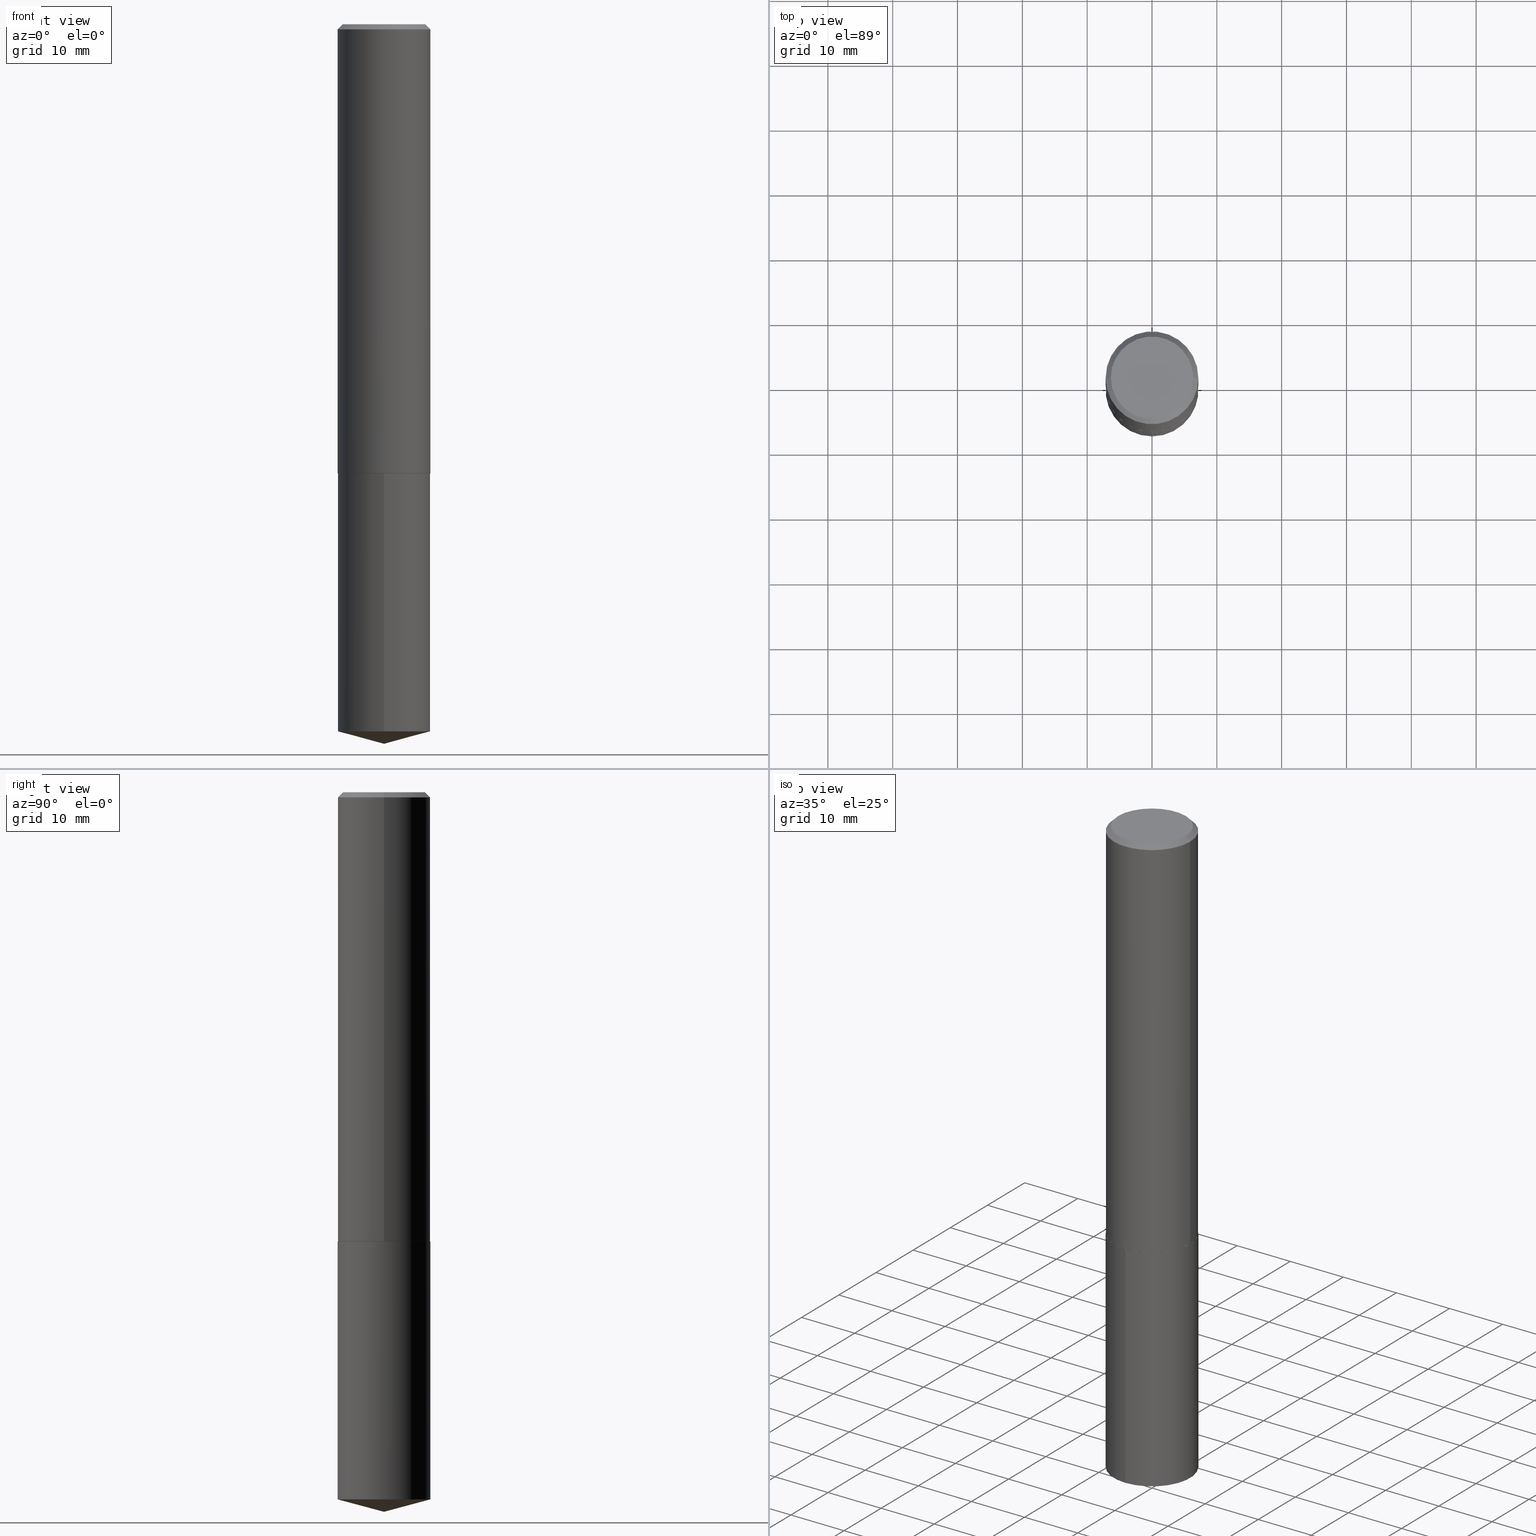
[diagram: canonical four-view strip — front | top / right | iso, engineering-drawing reading convention]
A machine part, canonical four-view strip (front | top / right | iso — engineering-drawing reading convention). The complete STEP part file that produces these views, byte-faithful:
ISO-10303-21;
HEADER;
FILE_DESCRIPTION (( 'STEP AP203' ),
    '1' );
FILE_NAME ('63039.STEP',
    '2024-04-23T08:23:49',
    ( '' ),
    ( '' ),
    'SwSTEP 2.0',
    'SolidWorks 2023',
    '' );
FILE_SCHEMA (( 'CONFIG_CONTROL_DESIGN' ));
ENDSEC;

DATA;
#1 = ORIENTED_EDGE ( 'NONE', *, *, #39, .F. ) ;
#2 = CARTESIAN_POINT ( 'NONE',  ( 1.050222486221045995E-28, -1.499514380840898218E-14, -4.294672302330639901 ) ) ;
#3 = DIRECTION ( 'NONE',  ( 6.982962677686265922E-15, 1.000000000000000000, -3.491721149235287367E-15 ) ) ;
#4 = EDGE_CURVE ( 'NONE', #121, #85, #272, .T. ) ;
#5 = APPROVAL_PERSON_ORGANIZATION ( #176, #36, #379 ) ;
#6 = ORIENTED_EDGE ( 'NONE', *, *, #308, .F. ) ;
#7 = DIRECTION ( 'NONE',  ( -2.445301347483331542E-29, 3.491721149235287761E-15, 1.000000000000000000 ) ) ;
#8 = CARTESIAN_POINT ( 'NONE',  ( -0.2502499999999999725, 1.802040806010411548E-15, 7.225416114845277753E-19 ) ) ;
#9 = CARTESIAN_POINT ( 'NONE',  ( 1.068621141863690823E-28, -1.525917059427313222E-14, -4.370099999999999874 ) ) ;
#10 = CIRCLE ( 'NONE', #153, 0.2815000000000003055 ) ;
#11 = ADVANCED_FACE ( 'NONE', ( #91 ), #95, .T. ) ;
#12 = DIRECTION ( 'NONE',  ( 2.438088387897960049E-29, -3.491481338843145188E-15, -1.000000000000000000 ) ) ;
#13 = PERSON_AND_ORGANIZATION_ROLE ( 'classification_officer' ) ;
#14 = EDGE_CURVE ( 'NONE', #322, #348, #260, .T. ) ;
#15 = VERTEX_POINT ( 'NONE', #265 ) ;
#16 = DIRECTION ( 'NONE',  ( -2.445468806185136597E-29, 3.491481338843145583E-15, 1.000000000000000000 ) ) ;
#17 = EDGE_LOOP ( 'NONE', ( #58, #57, #383, #263 ) ) ;
#18 = FACE_OUTER_BOUND ( 'NONE', #88, .T. ) ;
#19 = CIRCLE ( 'NONE', #100, 0.2814999999999999725 ) ;
#20 = ORIENTED_EDGE ( 'NONE', *, *, #261, .F. ) ;
#21 = DIRECTION ( 'NONE',  ( -2.445468806185136597E-29, 3.491481338843145583E-15, 1.000000000000000000 ) ) ;
#22 = PRODUCT_RELATED_PRODUCT_CATEGORY ( 'detail', '', ( #92 ) ) ;
#23 = CARTESIAN_POINT ( 'NONE',  ( 6.670994356392434802E-29, -9.524411944230218613E-15, -2.727899999999999991 ) ) ;
#24 = ORIENTED_EDGE ( 'NONE', *, *, #384, .T. ) ;
#25 = PERSON_AND_ORGANIZATION_ROLE ( 'design_owner' ) ;
#26 = ORIENTED_EDGE ( 'NONE', *, *, #251, .F. ) ;
#27 = ADVANCED_FACE ( 'NONE', ( #120 ), #232, .F. ) ;
#28 = ORIENTED_EDGE ( 'NONE', *, *, #179, .T. ) ;
#29 = EDGE_LOOP ( 'NONE', ( #6, #198, #26 ) ) ;
#30 = VERTEX_POINT ( 'NONE', #267 ) ;
#31 = DIRECTION ( 'NONE',  ( 1.000000000000000000, -6.982962677686265922E-15, 4.876176775795935793E-29 ) ) ;
#32 = ORIENTED_EDGE ( 'NONE', *, *, #181, .T. ) ;
#33 = DIRECTION ( 'NONE',  ( -2.445468806185136597E-29, 3.491481338843145583E-15, 1.000000000000000000 ) ) ;
#34 = CIRCLE ( 'NONE', #62, 0.2502499999999999725 ) ;
#35 = DIRECTION ( 'NONE',  ( -2.445468806185136597E-29, 3.491481338843145583E-15, 1.000000000000000000 ) ) ;
#36 = APPROVAL ( #173, 'UNSPECIFIED' ) ;
#37 = DIRECTION ( 'NONE',  ( -2.445301347483331542E-29, 3.491721149235287761E-15, 1.000000000000000000 ) ) ;
#38 = AXIS2_PLACEMENT_3D ( 'NONE', #84, #195, #317 ) ;
#39 = EDGE_CURVE ( 'NONE', #146, #83, #342, .T. ) ;
#40 = CIRCLE ( 'NONE', #51, 0.2814999999999999725 ) ;
#41 = LOCAL_TIME ( 4, 23, 49.00000000000000000, #72 ) ;
#42 = DIRECTION ( 'NONE',  ( -2.445468806185136597E-29, 3.491481338843145583E-15, 1.000000000000000000 ) ) ;
#43 = EDGE_CURVE ( 'NONE', #121, #266, #167, .T. ) ;
#44 = DIRECTION ( 'NONE',  ( -2.445468806185136597E-29, 3.491481338843145583E-15, 1.000000000000000000 ) ) ;
#45 = AXIS2_PLACEMENT_3D ( 'NONE', #331, #369, #301 ) ;
#46 = CC_DESIGN_DATE_AND_TIME_ASSIGNMENT ( #80, #141, ( #76 ) ) ;
#47 = CARTESIAN_POINT ( 'NONE',  ( 2.000177801164748486E-15, 0.2814999999999904801, -2.728400000000001491 ) ) ;
#48 = CARTESIAN_POINT ( 'NONE',  ( -1.965703993768616963E-15, -0.2815000000000095204, -2.728399999999999270 ) ) ;
#49 = COORDINATED_UNIVERSAL_TIME_OFFSET ( 5, 0, .BEHIND. ) ;
#50 = CC_DESIGN_PERSON_AND_ORGANIZATION_ASSIGNMENT ( #56, #25, ( #92 ) ) ;
#51 = AXIS2_PLACEMENT_3D ( 'NONE', #130, #154, #366 ) ;
#52 = ORIENTED_EDGE ( 'NONE', *, *, #384, .F. ) ;
#53 = CC_DESIGN_APPROVAL ( #365, ( #76 ) ) ;
#54 = DATE_AND_TIME ( #200, #356 ) ;
#55 = CARTESIAN_POINT ( 'NONE',  ( 7.642090019328603538E-31, -1.091087918388490390E-16, -0.03125000000000021511 ) ) ;
#56 = PERSON_AND_ORGANIZATION ( #299, #169 ) ;
#57 = ORIENTED_EDGE ( 'NONE', *, *, #181, .F. ) ;
#58 = ORIENTED_EDGE ( 'NONE', *, *, #275, .F. ) ;
#59 = DIRECTION ( 'NONE',  ( -2.445468806185136597E-29, 3.491481338843145583E-15, 1.000000000000000000 ) ) ;
#60 = ORIENTED_EDGE ( 'NONE', *, *, #251, .T. ) ;
#61 = AXIS2_PLACEMENT_3D ( 'NONE', #122, #161, #104 ) ;
#62 = AXIS2_PLACEMENT_3D ( 'NONE', #94, #35, #236 ) ;
#63 = APPROVAL_PERSON_ORGANIZATION ( #253, #365, #196 ) ;
#64 = AXIS2_PLACEMENT_3D ( 'NONE', #165, #42, #105 ) ;
#65 = CARTESIAN_POINT ( 'NONE',  ( 0.2814999999999999725, -2.040338978211535305E-15, -0.03125000000000021511 ) ) ;
#66 = DIRECTION ( 'NONE',  ( 1.000000000000000000, -6.982962677686264344E-15, 0.000000000000000000 ) ) ;
#67 = CARTESIAN_POINT ( 'NONE',  ( 6.670994356392434802E-29, -9.524411944230218613E-15, -2.727899999999999991 ) ) ;
#68 = VECTOR ( 'NONE', #209, 39.37007874015748143 ) ;
#69 = CARTESIAN_POINT ( 'NONE',  ( 6.672217090795527604E-29, -9.526157684899640905E-15, -2.728400000000000158 ) ) ;
#70 = COORDINATED_UNIVERSAL_TIME_OFFSET ( 5, 0, .BEHIND. ) ;
#71 = DIRECTION ( 'NONE',  ( -6.982962677686265922E-15, -1.000000000000000000, 3.881844395970533976E-15 ) ) ;
#72 = COORDINATED_UNIVERSAL_TIME_OFFSET ( 5, 0, .BEHIND. ) ;
#73 = MANIFOLD_SOLID_BREP ( 'Body-Move/Copy2[1]', #387 ) ;
#74 = DIRECTION ( 'NONE',  ( -2.445301347483331542E-29, 3.491721149235287761E-15, 1.000000000000000000 ) ) ;
#75 = DIRECTION ( 'NONE',  ( 1.000000000000000000, -6.982962677686264344E-15, 0.000000000000000000 ) ) ;
#76 = SECURITY_CLASSIFICATION ( '', '', #277 ) ;
#77 = ADVANCED_FACE ( 'NONE', ( #18 ), #340, .T. ) ;
#78 = CARTESIAN_POINT ( 'NONE',  ( -0.2815000000000003055, -7.524234143065534418E-15, -2.727899999999999991 ) ) ;
#79 = COORDINATED_UNIVERSAL_TIME_OFFSET ( 5, 0, .BEHIND. ) ;
#80 = DATE_AND_TIME ( #347, #41 ) ;
#81 = AXIS2_PLACEMENT_3D ( 'NONE', #203, #59, #175 ) ;
#82 = APPLICATION_CONTEXT ( 'configuration controlled 3d designs of mechanical parts and assemblies' ) ;
#83 = VERTEX_POINT ( 'NONE', #320 ) ;
#84 = CARTESIAN_POINT ( 'NONE',  ( 0.000000000000000000, 0.000000000000000000, 0.000000000000000000 ) ) ;
#85 = VERTEX_POINT ( 'NONE', #78 ) ;
#86 = ORIENTED_EDGE ( 'NONE', *, *, #370, .T. ) ;
#87 = PRODUCT_DEFINITION_SHAPE ( 'NONE', 'NONE',  #344 ) ;
#88 = EDGE_LOOP ( 'NONE', ( #114, #170, #389, #220 ) ) ;
#89 = CIRCLE ( 'NONE', #81, 0.2814999999999999725 ) ;
#90 = CC_DESIGN_APPROVAL ( #212, ( #373 ) ) ;
#91 = FACE_OUTER_BOUND ( 'NONE', #338, .T. ) ;
#92 = PRODUCT ( '63039', '63039', '', ( #168 ) ) ;
#93 = APPROVAL_ROLE ( '' ) ;
#94 = CARTESIAN_POINT ( 'NONE',  ( -1.766952972086504911E-47, 2.522740553079217515E-33, 7.225416114969393346E-19 ) ) ;
#95 = CYLINDRICAL_SURFACE ( 'NONE', #269, 0.2815000000000001390 ) ;
#96 = DATE_AND_TIME ( #127, #229 ) ;
#97 = DIRECTION ( 'NONE',  ( -2.445468806185136597E-29, 3.491481338843145583E-15, 1.000000000000000000 ) ) ;
#98 = AXIS2_PLACEMENT_3D ( 'NONE', #55, #388, #314 ) ;
#99 = MANIFOLD_SOLID_BREP ( 'Body-Move/Copy2[2]', #138 ) ;
#100 = AXIS2_PLACEMENT_3D ( 'NONE', #333, #374, #367 ) ;
#101 = DIMENSIONAL_EXPONENTS ( 1.000000000000000000, 0.000000000000000000, 0.000000000000000000, 0.000000000000000000, 0.000000000000000000, 0.000000000000000000, 0.000000000000000000 ) ;
#102 = EDGE_LOOP ( 'NONE', ( #353, #227, #28, #240 ) ) ;
#103 = CARTESIAN_POINT ( 'NONE',  ( -0.2814999999999999725, 1.856595201929834915E-15, -0.03125000000000021511 ) ) ;
#104 = DIRECTION ( 'NONE',  ( 1.000000000000000000, -6.982962677686267499E-15, 0.000000000000000000 ) ) ;
#105 = DIRECTION ( 'NONE',  ( 1.000000000000000000, -6.982962677686264344E-15, 0.000000000000000000 ) ) ;
#106 = ORIENTED_EDGE ( 'NONE', *, *, #187, .F. ) ;
#107 = CONICAL_SURFACE ( 'NONE', #313, 146.9311341562574000, 1.308996938995751202 ) ;
#108 = APPLICATION_CONTEXT ( 'configuration controlled 3d designs of mechanical parts and assemblies' ) ;
#109 = CC_DESIGN_PERSON_AND_ORGANIZATION_ASSIGNMENT ( #135, #377, ( #344 ) ) ;
#110 = VECTOR ( 'NONE', #345, 39.37007874015748143 ) ;
#111 = COORDINATED_UNIVERSAL_TIME_OFFSET ( 5, 0, .BEHIND. ) ;
#112 = DATE_AND_TIME ( #381, #256 ) ;
#113 = APPROVAL_DATE_TIME ( #385, #36 ) ;
#114 = ORIENTED_EDGE ( 'NONE', *, *, #136, .F. ) ;
#115 = PERSON_AND_ORGANIZATION ( #299, #169 ) ;
#116 = AXIS2_PLACEMENT_3D ( 'NONE', #2, #7, #358 ) ;
#117 = CONICAL_SURFACE ( 'NONE', #343, 0.2815000000000003055, 0.7853981633973459164 ) ;
#118 = LINE ( 'NONE', #147, #213 ) ;
#119 = CC_DESIGN_PERSON_AND_ORGANIZATION_ASSIGNMENT ( #336, #304, ( #373 ) ) ;
#120 = FACE_OUTER_BOUND ( 'NONE', #286, .T. ) ;
#121 = VERTEX_POINT ( 'NONE', #171 ) ;
#122 = CARTESIAN_POINT ( 'NONE',  ( 6.672217090795527604E-29, -9.526157684899640905E-15, -2.728400000000000158 ) ) ;
#123 = FACE_OUTER_BOUND ( 'NONE', #323, .T. ) ;
#124 = AXIS2_PLACEMENT_3D ( 'NONE', #204, #297, #390 ) ;
#125 = DIRECTION ( 'NONE',  ( -2.445301347483331542E-29, 3.491721149235287367E-15, 1.000000000000000000 ) ) ;
#126 = EDGE_LOOP ( 'NONE', ( #32, #143 ) ) ;
#127 = CALENDAR_DATE ( 2024, 23, 4 ) ;
#128 = CARTESIAN_POINT ( 'NONE',  ( 0.2815000000000001390, -1.965703993768684805E-15, 1.372643762386556638E-29 ) ) ;
#129 = ADVANCED_FACE ( 'NONE', ( #142 ), #199, .T. ) ;
#130 = CARTESIAN_POINT ( 'NONE',  ( 1.050222486221045995E-28, -1.499514380840898218E-14, -4.294672302330639901 ) ) ;
#131 = DIRECTION ( 'NONE',  ( -2.445301347483331542E-29, 3.491721149235287761E-15, 1.000000000000000000 ) ) ;
#132 = LINE ( 'NONE', #357, #68 ) ;
#133 = LINE ( 'NONE', #285, #110 ) ;
#134 = LINE ( 'NONE', #103, #177 ) ;
#135 = PERSON_AND_ORGANIZATION ( #299, #169 ) ;
#136 = EDGE_CURVE ( 'NONE', #146, #15, #258, .T. ) ;
#137 = VERTEX_POINT ( 'NONE', #48 ) ;
#138 = CLOSED_SHELL ( 'NONE', ( #129, #11, #309, #27, #321, #184, #247, #205 ) ) ;
#139 = VECTOR ( 'NONE', #239, 39.37007874015748143 ) ;
#140 = CC_DESIGN_APPROVAL ( #36, ( #344 ) ) ;
#141 = DATE_TIME_ROLE ( 'classification_date' ) ;
#142 = FACE_OUTER_BOUND ( 'NONE', #102, .T. ) ;
#143 = ORIENTED_EDGE ( 'NONE', *, *, #234, .T. ) ;
#144 = AXIS2_PLACEMENT_3D ( 'NONE', #244, #21, #283 ) ;
#145 = CARTESIAN_POINT ( 'NONE',  ( 0.2502499999999999725, -1.878589301076930179E-15, 7.225416115096182129E-19 ) ) ;
#146 = VERTEX_POINT ( 'NONE', #376 ) ;
#147 = CARTESIAN_POINT ( 'NONE',  ( -0.2815000000000001390, 2.000177801164683011E-15, -1.384680227906756714E-29 ) ) ;
#148 = ORIENTED_EDGE ( 'NONE', *, *, #187, .T. ) ;
#149 = ADVANCED_FACE ( 'NONE', ( #324 ), #107, .T. ) ;
#150 = CARTESIAN_POINT ( 'NONE',  ( 6.672217090795527604E-29, -9.526157684899640905E-15, -2.728400000000000158 ) ) ;
#151 = DIRECTION ( 'NONE',  ( -2.445468806185136597E-29, 3.491481338843145583E-15, 1.000000000000000000 ) ) ;
#152 = DIRECTION ( 'NONE',  ( 1.000000000000000000, -6.982962677686264344E-15, 0.000000000000000000 ) ) ;
#153 = AXIS2_PLACEMENT_3D ( 'NONE', #67, #97, #152 ) ;
#154 = DIRECTION ( 'NONE',  ( -2.445301347483331542E-29, 3.491721149235287761E-15, 1.000000000000000000 ) ) ;
#155 = DIRECTION ( 'NONE',  ( -2.445468806185136597E-29, 3.491481338843145583E-15, 1.000000000000000000 ) ) ;
#156 = DIRECTION ( 'NONE',  ( -6.982962677686265133E-15, -1.000000000000000000, 3.510303681827583241E-15 ) ) ;
#157 = ORIENTED_EDGE ( 'NONE', *, *, #4, .T. ) ;
#158 = DIRECTION ( 'NONE',  ( -6.982962677686265922E-15, -1.000000000000000000, 3.881844395970533976E-15 ) ) ;
#159 =( CONVERSION_BASED_UNIT ( 'INCH', #375 ) LENGTH_UNIT ( ) NAMED_UNIT ( #101 ) );
#160 = PERSON_AND_ORGANIZATION_ROLE ( 'design_supplier' ) ;
#161 = DIRECTION ( 'NONE',  ( -2.445468806185136597E-29, 3.491481338843145583E-15, 1.000000000000000000 ) ) ;
#162 =( NAMED_UNIT ( * ) SI_UNIT ( $, .STERADIAN. ) SOLID_ANGLE_UNIT ( ) );
#163 = AXIS2_PLACEMENT_3D ( 'NONE', #188, #252, #71 ) ;
#164 = CYLINDRICAL_SURFACE ( 'NONE', #193, 0.2814999999999999725 ) ;
#165 = CARTESIAN_POINT ( 'NONE',  ( 6.670994356392434802E-29, -9.524411944230218613E-15, -2.727899999999999991 ) ) ;
#166 = EDGE_CURVE ( 'NONE', #85, #322, #118, .T. ) ;
#167 = CIRCLE ( 'NONE', #61, 0.2810000000000002496 ) ;
#168 = MECHANICAL_CONTEXT ( 'NONE', #82, 'mechanical' ) ;
#169 = ORGANIZATION ( 'UNSPECIFIED', 'UNSPECIFIED', '' ) ;
#170 = ORIENTED_EDGE ( 'NONE', *, *, #39, .T. ) ;
#171 = CARTESIAN_POINT ( 'NONE',  ( -0.2810000000000002496, -7.526883370239646408E-15, -2.728400000000000158 ) ) ;
#172 = VERTEX_POINT ( 'NONE', #145 ) ;
#173 = APPROVAL_STATUS ( 'not_yet_approved' ) ;
#174 = ORIENTED_EDGE ( 'NONE', *, *, #308, .T. ) ;
#175 = DIRECTION ( 'NONE',  ( 1.000000000000000000, -6.982962677686267499E-15, 0.000000000000000000 ) ) ;
#176 = PERSON_AND_ORGANIZATION ( #299, #169 ) ;
#177 = VECTOR ( 'NONE', #280, 39.37007874015748143 ) ;
#178 = DIRECTION ( 'NONE',  ( -6.982962677686265133E-15, -1.000000000000000000, 3.510303681827583241E-15 ) ) ;
#179 = EDGE_CURVE ( 'NONE', #348, #322, #89, .T. ) ;
#180 = ORIENTED_EDGE ( 'NONE', *, *, #136, .T. ) ;
#181 = EDGE_CURVE ( 'NONE', #231, #172, #319, .T. ) ;
#182 = CYLINDRICAL_SURFACE ( 'NONE', #302, 0.2815000000000001390 ) ;
#183 = PLANE ( 'NONE',  #306 ) ;
#184 = ADVANCED_FACE ( 'NONE', ( #233 ), #182, .T. ) ;
#185 = CONICAL_SURFACE ( 'NONE', #45, 0.2814999999999999725, 0.7853981633974450594 ) ;
#186 = DIRECTION ( 'NONE',  ( -1.000000000000000000, 6.982962677686265922E-15, -4.876176775795935793E-29 ) ) ;
#187 = EDGE_CURVE ( 'NONE', #30, #85, #10, .T. ) ;
#188 = CARTESIAN_POINT ( 'NONE',  ( 6.672217090795527604E-29, -9.526157684899640905E-15, -2.728400000000000158 ) ) ;
#189 = EDGE_CURVE ( 'NONE', #197, #146, #132, .T. ) ;
#190 =( NAMED_UNIT ( * ) PLANE_ANGLE_UNIT ( ) SI_UNIT ( $, .RADIAN. ) );
#191 =( LENGTH_UNIT ( ) NAMED_UNIT ( * ) SI_UNIT ( $, .METRE. ) );
#192 = FACE_OUTER_BOUND ( 'NONE', #386, .T. ) ;
#193 = AXIS2_PLACEMENT_3D ( 'NONE', #69, #74, #246 ) ;
#194 = DIRECTION ( 'NONE',  ( 0.7071067811864750752, -2.468850131081498176E-15, 0.7071067811866199593 ) ) ;
#195 = DIRECTION ( 'NONE',  ( 0.000000000000000000, 0.000000000000000000, 1.000000000000000000 ) ) ;
#196 = APPROVAL_ROLE ( '' ) ;
#197 = VERTEX_POINT ( 'NONE', #9 ) ;
#198 = ORIENTED_EDGE ( 'NONE', *, *, #189, .T. ) ;
#199 = CONICAL_SURFACE ( 'NONE', #98, 0.2814999999999999725, 0.7853981633974450594 ) ;
#200 = CALENDAR_DATE ( 2024, 23, 4 ) ;
#201 = CONICAL_SURFACE ( 'NONE', #243, 146.9311341562574000, 1.308996938995751202 ) ;
#202 = UNCERTAINTY_MEASURE_WITH_UNIT (LENGTH_MEASURE( 1.000000000000000082E-05 ), #159, 'distance_accuracy_value', 'NONE');
#203 = CARTESIAN_POINT ( 'NONE',  ( 7.642090019328603538E-31, -1.091087918388490390E-16, -0.03125000000000021511 ) ) ;
#204 = CARTESIAN_POINT ( 'NONE',  ( -1.766952972086504911E-47, 2.522740553079217515E-33, 7.225416114969393346E-19 ) ) ;
#205 = ADVANCED_FACE ( 'NONE', ( #270 ), #242, .F. ) ;
#206 = ORIENTED_EDGE ( 'NONE', *, *, #179, .F. ) ;
#207 = CARTESIAN_POINT ( 'NONE',  ( 6.672217090795527604E-29, -9.526157684899640905E-15, -2.728400000000000158 ) ) ;
#208 =( GEOMETRIC_REPRESENTATION_CONTEXT ( 3 ) GLOBAL_UNCERTAINTY_ASSIGNED_CONTEXT ( ( #202 ) ) GLOBAL_UNIT_ASSIGNED_CONTEXT ( ( #159, #190, #162 ) ) REPRESENTATION_CONTEXT ( 'NONE', 'WORKASPACE' ) );
#209 = DIRECTION ( 'NONE',  ( 6.863315791527699781E-15, 0.9659258262890701996, 0.2588190451025134675 ) ) ;
#210 = DIRECTION ( 'NONE',  ( 0.7071067811865452413, -7.319954787623248157E-15, -0.7071067811865497932 ) ) ;
#211 = CARTESIAN_POINT ( 'NONE',  ( 7.642090019328603538E-31, -1.091087918388490390E-16, -0.03125000000000021511 ) ) ;
#212 = APPROVAL ( #305, 'UNSPECIFIED' ) ;
#213 = VECTOR ( 'NONE', #230, 39.37007874015748143 ) ;
#214 = CARTESIAN_POINT ( 'NONE',  ( 0.2810000000000002496, -1.148837019732948349E-14, -2.728400000000000158 ) ) ;
#215 = FACE_OUTER_BOUND ( 'NONE', #378, .T. ) ;
#216 = CARTESIAN_POINT ( 'NONE',  ( 0.000000000000000000, 0.000000000000000000, 0.000000000000000000 ) ) ;
#217 = EDGE_LOOP ( 'NONE', ( #60, #180, #52, #346 ) ) ;
#218 = CARTESIAN_POINT ( 'NONE',  ( -0.2814999999999999725, -2.816582566869850057E-15, -0.03125000000000021511 ) ) ;
#219 = APPLICATION_PROTOCOL_DEFINITION ( 'international standard', 'config_control_design', 1994, #82 ) ;
#220 = ORIENTED_EDGE ( 'NONE', *, *, #279, .F. ) ;
#221 = ADVANCED_FACE ( 'NONE', ( #268 ), #201, .T. ) ;
#222 = FACE_OUTER_BOUND ( 'NONE', #217, .T. ) ;
#223 = CC_DESIGN_PERSON_AND_ORGANIZATION_ASSIGNMENT ( #241, #160, ( #373 ) ) ;
#224 = AXIS2_PLACEMENT_3D ( 'NONE', #276, #12, #186 ) ;
#225 = ORIENTED_EDGE ( 'NONE', *, *, #189, .F. ) ;
#226 = CALENDAR_DATE ( 2024, 23, 4 ) ;
#227 = ORIENTED_EDGE ( 'NONE', *, *, #275, .T. ) ;
#228 = CIRCLE ( 'NONE', #287, 0.2815000000000003055 ) ;
#229 = LOCAL_TIME ( 4, 23, 49.00000000000000000, #70 ) ;
#230 = DIRECTION ( 'NONE',  ( -2.445468806185136877E-29, 3.491481338843145188E-15, 1.000000000000000000 ) ) ;
#231 = VERTEX_POINT ( 'NONE', #8 ) ;
#232 = PLANE ( 'NONE',  #354 ) ;
#233 = FACE_OUTER_BOUND ( 'NONE', #310, .T. ) ;
#234 = EDGE_CURVE ( 'NONE', #172, #231, #34, .T. ) ;
#235 = CARTESIAN_POINT ( 'NONE',  ( -1.965703993768616963E-15, -0.2815000000000095204, -2.728399999999999270 ) ) ;
#236 = DIRECTION ( 'NONE',  ( 1.000000000000000000, -6.982962677686266711E-15, 4.876199892921953804E-29 ) ) ;
#237 = ADVANCED_FACE ( 'NONE', ( #123 ), #183, .F. ) ;
#238 = ORIENTED_EDGE ( 'NONE', *, *, #261, .T. ) ;
#239 = DIRECTION ( 'NONE',  ( -2.445468806185136877E-29, 3.491481338843145188E-15, 1.000000000000000000 ) ) ;
#240 = ORIENTED_EDGE ( 'NONE', *, *, #361, .F. ) ;
#241 = PERSON_AND_ORGANIZATION ( #299, #169 ) ;
#242 = PLANE ( 'NONE',  #224 ) ;
#243 = AXIS2_PLACEMENT_3D ( 'NONE', #300, #37, #156 ) ;
#244 = CARTESIAN_POINT ( 'NONE',  ( 6.672217090795527604E-29, -9.526157684899640905E-15, -2.728400000000000158 ) ) ;
#245 = FACE_OUTER_BOUND ( 'NONE', #17, .T. ) ;
#246 = DIRECTION ( 'NONE',  ( -6.982962677686265922E-15, -1.000000000000000000, 3.881844395970533976E-15 ) ) ;
#247 = ADVANCED_FACE ( 'NONE', ( #245 ), #185, .T. ) ;
#248 = VECTOR ( 'NONE', #210, 39.37007874015748143 ) ;
#249 = EDGE_CURVE ( 'NONE', #83, #137, #273, .T. ) ;
#250 = CARTESIAN_POINT ( 'NONE',  ( 0.2815000000000003055, -1.149011593799890421E-14, -2.727899999999999991 ) ) ;
#251 = EDGE_CURVE ( 'NONE', #83, #146, #40, .T. ) ;
#252 = DIRECTION ( 'NONE',  ( -2.445301347483331542E-29, 3.491721149235287761E-15, 1.000000000000000000 ) ) ;
#253 = PERSON_AND_ORGANIZATION ( #299, #169 ) ;
#254 = AXIS2_PLACEMENT_3D ( 'NONE', #211, #151, #334 ) ;
#255 = CC_DESIGN_SECURITY_CLASSIFICATION ( #76, ( #373 ) ) ;
#256 = LOCAL_TIME ( 4, 23, 49.00000000000000000, #49 ) ;
#257 = APPROVAL_STATUS ( 'not_yet_approved' ) ;
#258 = LINE ( 'NONE', #47, #372 ) ;
#259 = ORIENTED_EDGE ( 'NONE', *, *, #43, .T. ) ;
#260 = CIRCLE ( 'NONE', #254, 0.2814999999999999725 ) ;
#261 = EDGE_CURVE ( 'NONE', #30, #348, #271, .T. ) ;
#262 = VECTOR ( 'NONE', #125, 39.37007874015748143 ) ;
#263 = ORIENTED_EDGE ( 'NONE', *, *, #14, .T. ) ;
#264 = CC_DESIGN_PERSON_AND_ORGANIZATION_ASSIGNMENT ( #364, #13, ( #76 ) ) ;
#265 = CARTESIAN_POINT ( 'NONE',  ( 2.000177801164787141E-15, 0.2814999999999904801, -2.728400000000001491 ) ) ;
#266 = VERTEX_POINT ( 'NONE', #214 ) ;
#267 = CARTESIAN_POINT ( 'NONE',  ( 0.2815000000000003055, -1.149011593799890421E-14, -2.727899999999999991 ) ) ;
#268 = FACE_OUTER_BOUND ( 'NONE', #325, .T. ) ;
#269 = AXIS2_PLACEMENT_3D ( 'NONE', #330, #33, #295 ) ;
#270 = FACE_OUTER_BOUND ( 'NONE', #126, .T. ) ;
#271 = LINE ( 'NONE', #128, #139 ) ;
#272 = LINE ( 'NONE', #332, #328 ) ;
#273 = LINE ( 'NONE', #235, #262 ) ;
#274 = ADVANCED_BREP_SHAPE_REPRESENTATION ( '63039', ( #73, #99, #38 ), #208 ) ;
#275 = EDGE_CURVE ( 'NONE', #172, #348, #337, .T. ) ;
#276 = CARTESIAN_POINT ( 'NONE',  ( -8.834764860432524555E-48, 1.261370276539608758E-33, 3.612708057484696673E-19 ) ) ;
#277 = SECURITY_CLASSIFICATION_LEVEL ( 'unclassified' ) ;
#278 = ORIENTED_EDGE ( 'NONE', *, *, #43, .F. ) ;
#279 = EDGE_CURVE ( 'NONE', #15, #137, #19, .T. ) ;
#280 = DIRECTION ( 'NONE',  ( -0.7071067811865452413, 2.468850131082233000E-15, -0.7071067811865497932 ) ) ;
#281 = CC_DESIGN_DATE_AND_TIME_ASSIGNMENT ( #54, #290, ( #344 ) ) ;
#282 = ORIENTED_EDGE ( 'NONE', *, *, #14, .F. ) ;
#283 = DIRECTION ( 'NONE',  ( 1.000000000000000000, -6.982962677686267499E-15, 0.000000000000000000 ) ) ;
#284 = ORIENTED_EDGE ( 'NONE', *, *, #166, .F. ) ;
#285 = CARTESIAN_POINT ( 'NONE',  ( 1.068621141863690823E-28, -1.525917059427313222E-14, -4.370099999999999874 ) ) ;
#286 = EDGE_LOOP ( 'NONE', ( #351, #278 ) ) ;
#287 = AXIS2_PLACEMENT_3D ( 'NONE', #23, #16, #75 ) ;
#288 = SHAPE_DEFINITION_REPRESENTATION ( #87, #274 ) ;
#289 = ORIENTED_EDGE ( 'NONE', *, *, #4, .F. ) ;
#290 = DATE_TIME_ROLE ( 'creation_date' ) ;
#291 = CARTESIAN_POINT ( 'NONE',  ( -8.558503828087302996E-28, 1.222108202884672430E-13, 34.99997874015748067 ) ) ;
#292 = ORIENTED_EDGE ( 'NONE', *, *, #370, .F. ) ;
#293 = ADVANCED_FACE ( 'NONE', ( #222 ), #164, .T. ) ;
#294 = APPLICATION_PROTOCOL_DEFINITION ( 'international standard', 'config_control_design', 1994, #108 ) ;
#295 = DIRECTION ( 'NONE',  ( 1.000000000000000000, -6.982962677686265922E-15, 4.876176775795935793E-29 ) ) ;
#296 = ORIENTED_EDGE ( 'NONE', *, *, #316, .T. ) ;
#297 = DIRECTION ( 'NONE',  ( -2.445468806185136597E-29, 3.491481338843145583E-15, 1.000000000000000000 ) ) ;
#298 = DIRECTION ( 'NONE',  ( -2.438088387897960049E-29, 3.491481338843145188E-15, 1.000000000000000000 ) ) ;
#299 = PERSON ( 'UNSPECIFIED', 'UNSPECIFIED', 'UNSPECIFIED', ('UNSPECIFIED'), ('UNSPECIFIED'), ('UNSPECIFIED') ) ;
#300 = CARTESIAN_POINT ( 'NONE',  ( -8.558503828087302996E-28, 1.222108202884672430E-13, 34.99997874015748067 ) ) ;
#301 = DIRECTION ( 'NONE',  ( -1.000000000000000000, 6.982962677686267499E-15, 0.000000000000000000 ) ) ;
#302 = AXIS2_PLACEMENT_3D ( 'NONE', #216, #155, #362 ) ;
#303 = ORIENTED_EDGE ( 'NONE', *, *, #279, .T. ) ;
#304 = PERSON_AND_ORGANIZATION_ROLE ( 'creator' ) ;
#305 = APPROVAL_STATUS ( 'not_yet_approved' ) ;
#306 = AXIS2_PLACEMENT_3D ( 'NONE', #150, #359, #3 ) ;
#307 = LOCAL_TIME ( 4, 23, 49.00000000000000000, #111 ) ;
#308 = EDGE_CURVE ( 'NONE', #197, #83, #133, .T. ) ;
#309 = ADVANCED_FACE ( 'NONE', ( #215 ), #329, .T. ) ;
#310 = EDGE_LOOP ( 'NONE', ( #284, #296, #238, #282 ) ) ;
#311 = CARTESIAN_POINT ( 'NONE',  ( 6.672217090795527604E-29, -9.526157684899640905E-15, -2.728400000000000158 ) ) ;
#312 = CARTESIAN_POINT ( 'NONE',  ( 6.670994356392434802E-29, -9.524411944230218613E-15, -2.727899999999999991 ) ) ;
#313 = AXIS2_PLACEMENT_3D ( 'NONE', #291, #352, #178 ) ;
#314 = DIRECTION ( 'NONE',  ( -1.000000000000000000, 6.982962677686267499E-15, 0.000000000000000000 ) ) ;
#315 = DESIGN_CONTEXT ( 'detailed design', #108, 'design' ) ;
#316 = EDGE_CURVE ( 'NONE', #85, #30, #228, .T. ) ;
#317 = DIRECTION ( 'NONE',  ( 1.000000000000000000, 0.000000000000000000, 0.000000000000000000 ) ) ;
#318 = AXIS2_PLACEMENT_3D ( 'NONE', #311, #131, #158 ) ;
#319 = CIRCLE ( 'NONE', #124, 0.2502499999999999725 ) ;
#320 = CARTESIAN_POINT ( 'NONE',  ( -1.965703993768577914E-15, -0.2815000000000149050, -4.294672302330639013 ) ) ;
#321 = ADVANCED_FACE ( 'NONE', ( #192 ), #117, .T. ) ;
#322 = VERTEX_POINT ( 'NONE', #218 ) ;
#323 = EDGE_LOOP ( 'NONE', ( #24, #303 ) ) ;
#324 = FACE_OUTER_BOUND ( 'NONE', #29, .T. ) ;
#325 = EDGE_LOOP ( 'NONE', ( #225, #174, #1 ) ) ;
#326 = ORIENTED_EDGE ( 'NONE', *, *, #166, .T. ) ;
#327 = EDGE_CURVE ( 'NONE', #266, #121, #335, .T. ) ;
#328 = VECTOR ( 'NONE', #360, 39.37007874015748143 ) ;
#329 = CONICAL_SURFACE ( 'NONE', #64, 0.2815000000000003055, 0.7853981633973459164 ) ;
#330 = CARTESIAN_POINT ( 'NONE',  ( 0.000000000000000000, 0.000000000000000000, 0.000000000000000000 ) ) ;
#331 = CARTESIAN_POINT ( 'NONE',  ( 7.642090019328603538E-31, -1.091087918388490390E-16, -0.03125000000000021511 ) ) ;
#332 = CARTESIAN_POINT ( 'NONE',  ( -0.2815000000000003055, -7.524234143065534418E-15, -2.727899999999999991 ) ) ;
#333 = CARTESIAN_POINT ( 'NONE',  ( 6.672217090795527604E-29, -9.526157684899640905E-15, -2.728400000000000158 ) ) ;
#334 = DIRECTION ( 'NONE',  ( 1.000000000000000000, -6.982962677686267499E-15, 0.000000000000000000 ) ) ;
#335 = CIRCLE ( 'NONE', #144, 0.2810000000000002496 ) ;
#336 = PERSON_AND_ORGANIZATION ( #299, #169 ) ;
#337 = LINE ( 'NONE', #65, #248 ) ;
#338 = EDGE_LOOP ( 'NONE', ( #148, #326, #206, #20 ) ) ;
#339 = LINE ( 'NONE', #250, #363 ) ;
#340 = CYLINDRICAL_SURFACE ( 'NONE', #318, 0.2814999999999999725 ) ;
#341 = CARTESIAN_POINT ( 'NONE',  ( 0.2814999999999999725, -2.074812785607533117E-15, -0.03125000000000021511 ) ) ;
#342 = CIRCLE ( 'NONE', #116, 0.2814999999999999725 ) ;
#343 = AXIS2_PLACEMENT_3D ( 'NONE', #312, #44, #66 ) ;
#344 = PRODUCT_DEFINITION ( 'UNKNOWN', '', #373, #315 ) ;
#345 = DIRECTION ( 'NONE',  ( -6.745023994389845444E-15, -0.9659258262890684232, 0.2588190451025202399 ) ) ;
#346 = ORIENTED_EDGE ( 'NONE', *, *, #249, .F. ) ;
#347 = CALENDAR_DATE ( 2024, 23, 4 ) ;
#348 = VERTEX_POINT ( 'NONE', #341 ) ;
#349 = APPROVAL_DATE_TIME ( #112, #365 ) ;
#350 = APPROVAL_PERSON_ORGANIZATION ( #115, #212, #93 ) ;
#351 = ORIENTED_EDGE ( 'NONE', *, *, #327, .F. ) ;
#352 = DIRECTION ( 'NONE',  ( -2.445301347483331542E-29, 3.491721149235287761E-15, 1.000000000000000000 ) ) ;
#353 = ORIENTED_EDGE ( 'NONE', *, *, #234, .F. ) ;
#354 = AXIS2_PLACEMENT_3D ( 'NONE', #207, #298, #31 ) ;
#355 = CIRCLE ( 'NONE', #163, 0.2814999999999999725 ) ;
#356 = LOCAL_TIME ( 4, 23, 49.00000000000000000, #79 ) ;
#357 = CARTESIAN_POINT ( 'NONE',  ( 1.068713322012868549E-28, -1.525786199692528784E-14, -4.370099999999999874 ) ) ;
#358 = DIRECTION ( 'NONE',  ( -6.982962677686265922E-15, -1.000000000000000000, 3.881844395970533976E-15 ) ) ;
#359 = DIRECTION ( 'NONE',  ( 2.445301347483331542E-29, -3.491721149235287367E-15, -1.000000000000000000 ) ) ;
#360 = DIRECTION ( 'NONE',  ( -0.7071067811864750752, 7.493145998870092258E-15, 0.7071067811866199593 ) ) ;
#361 = EDGE_CURVE ( 'NONE', #231, #322, #134, .T. ) ;
#362 = DIRECTION ( 'NONE',  ( 1.000000000000000000, -6.982962677686265922E-15, 4.876176775795935793E-29 ) ) ;
#363 = VECTOR ( 'NONE', #194, 39.37007874015748143 ) ;
#364 = PERSON_AND_ORGANIZATION ( #299, #169 ) ;
#365 = APPROVAL ( #257, 'UNSPECIFIED' ) ;
#366 = DIRECTION ( 'NONE',  ( -6.982962677686265922E-15, -1.000000000000000000, 3.881844395970533976E-15 ) ) ;
#367 = DIRECTION ( 'NONE',  ( -6.982962677686265922E-15, -1.000000000000000000, 3.881844395970533976E-15 ) ) ;
#368 = APPROVAL_DATE_TIME ( #96, #212 ) ;
#369 = DIRECTION ( 'NONE',  ( 2.445468806185136597E-29, -3.491481338843145583E-15, -1.000000000000000000 ) ) ;
#370 = EDGE_CURVE ( 'NONE', #266, #30, #339, .T. ) ;
#371 = ORIENTED_EDGE ( 'NONE', *, *, #327, .T. ) ;
#372 = VECTOR ( 'NONE', #382, 39.37007874015748143 ) ;
#373 = PRODUCT_DEFINITION_FORMATION_WITH_SPECIFIED_SOURCE ( 'ANY', '', #92, .NOT_KNOWN. ) ;
#374 = DIRECTION ( 'NONE',  ( -2.445301347483331542E-29, 3.491721149235287761E-15, 1.000000000000000000 ) ) ;
#375 = LENGTH_MEASURE_WITH_UNIT ( LENGTH_MEASURE( 0.02539999999999999897 ), #191 );
#376 = CARTESIAN_POINT ( 'NONE',  ( 2.000177801164786352E-15, 0.2814999999999848734, -4.294672302330640790 ) ) ;
#377 = PERSON_AND_ORGANIZATION_ROLE ( 'creator' ) ;
#378 = EDGE_LOOP ( 'NONE', ( #371, #157, #106, #292 ) ) ;
#379 = APPROVAL_ROLE ( '' ) ;
#380 = ORIENTED_EDGE ( 'NONE', *, *, #316, .F. ) ;
#381 = CALENDAR_DATE ( 2024, 23, 4 ) ;
#382 = DIRECTION ( 'NONE',  ( -2.445301347483331542E-29, 3.491721149235287367E-15, 1.000000000000000000 ) ) ;
#383 = ORIENTED_EDGE ( 'NONE', *, *, #361, .T. ) ;
#384 = EDGE_CURVE ( 'NONE', #137, #15, #355, .T. ) ;
#385 = DATE_AND_TIME ( #226, #307 ) ;
#386 = EDGE_LOOP ( 'NONE', ( #289, #259, #86, #380 ) ) ;
#387 = CLOSED_SHELL ( 'NONE', ( #293, #149, #221, #77, #237 ) ) ;
#388 = DIRECTION ( 'NONE',  ( 2.445468806185136597E-29, -3.491481338843145583E-15, -1.000000000000000000 ) ) ;
#389 = ORIENTED_EDGE ( 'NONE', *, *, #249, .T. ) ;
#390 = DIRECTION ( 'NONE',  ( 1.000000000000000000, -6.982962677686266711E-15, 4.876199892921953804E-29 ) ) ;
ENDSEC;
END-ISO-10303-21;
